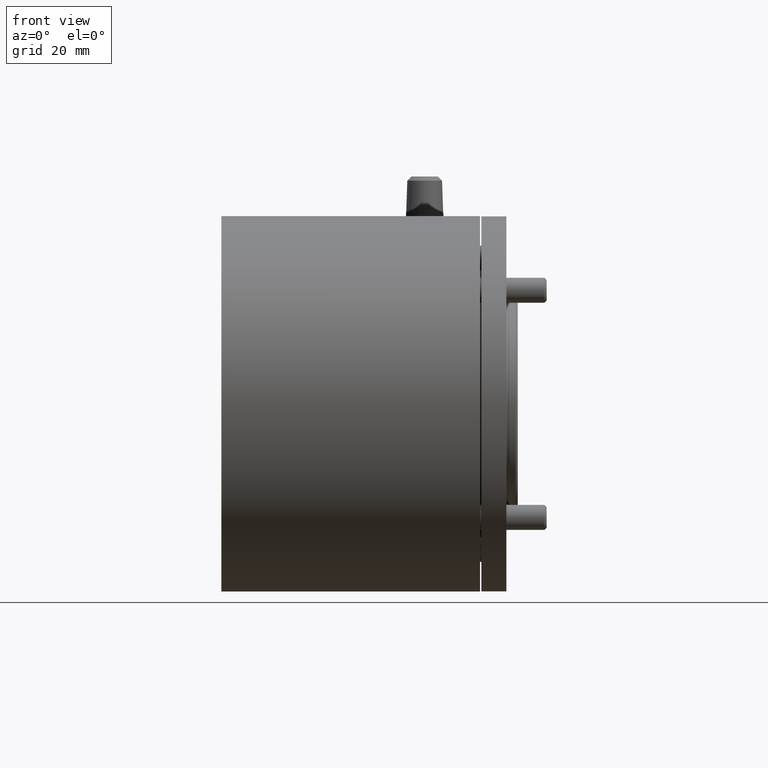
[diagram: clean part render]
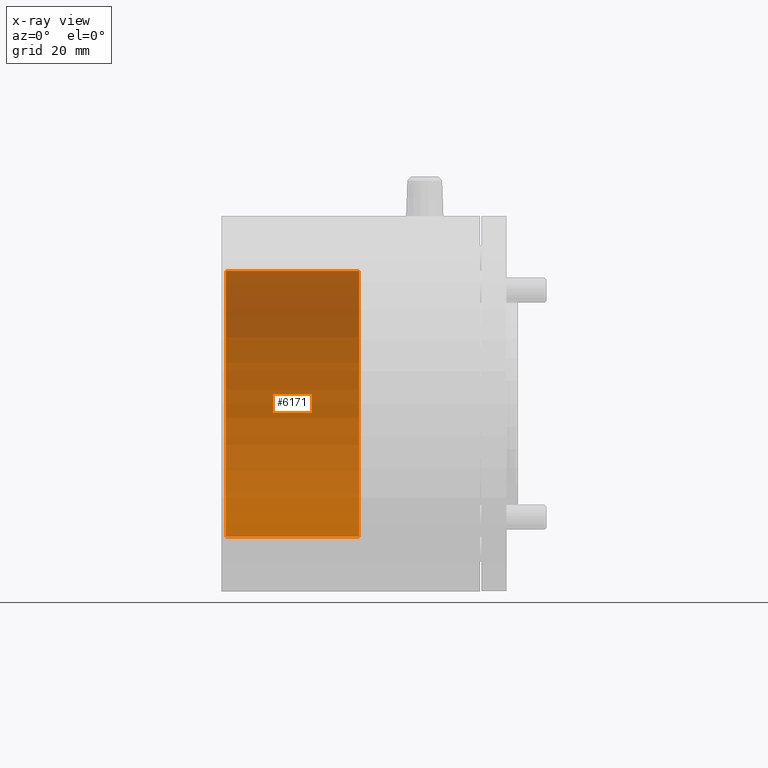
[diagram: x-ray — body ghosted, one internal face saturated and labeled with its STEP entity id]
A machine part, front view, then the same camera in x-ray: the body is ghosted and one INTERNAL B-rep face — a face not visible from any outside direction — is saturated and labeled: STEP entity #6171.
In plain terms, the highlighted cylindrical surface (partial cylindrical patch) has radius 31.85 mm, axis along (-1, -0, -0).
Its self-contained STEP definition (entity closure, byte-faithful):
#242 = VERTEX_POINT ( 'NONE', #11799 ) ;
#322 = VECTOR ( 'NONE', #5580, 1000.000000000000000 ) ;
#1030 = ORIENTED_EDGE ( 'NONE', *, *, #6987, .F. ) ;
#1964 = VERTEX_POINT ( 'NONE', #9335 ) ;
#2296 = DIRECTION ( 'NONE',  ( -1.000000000000000000, -0.000000000000000000, -0.000000000000000000 ) ) ;
#2821 = AXIS2_PLACEMENT_3D ( 'NONE', #11774, #2296, #12950 ) ;
#3744 = CIRCLE ( 'NONE', #12936, 31.85000000000000497 ) ;
#3747 = ORIENTED_EDGE ( 'NONE', *, *, #7602, .F. ) ;
#3917 = CARTESIAN_POINT ( 'NONE',  ( 32.00000000000000000, 3.900500055284320622E-15, -31.85000000000000497 ) ) ;
#4010 = CARTESIAN_POINT ( 'NONE',  ( 0.000000000000000000, 0.000000000000000000, 0.000000000000000000 ) ) ;
#4100 = AXIS2_PLACEMENT_3D ( 'NONE', #4010, #5099, #5287 ) ;
#4133 = DIRECTION ( 'NONE',  ( 0.000000000000000000, 0.000000000000000000, 1.000000000000000000 ) ) ;
#5099 = DIRECTION ( 'NONE',  ( -1.000000000000000000, -0.000000000000000000, -0.000000000000000000 ) ) ;
#5287 = DIRECTION ( 'NONE',  ( 0.000000000000000000, 0.000000000000000000, 1.000000000000000000 ) ) ;
#5580 = DIRECTION ( 'NONE',  ( -1.000000000000000000, -0.000000000000000000, -0.000000000000000000 ) ) ;
#5890 = ORIENTED_EDGE ( 'NONE', *, *, #9855, .T. ) ;
#6171 = ADVANCED_FACE ( 'NONE', ( #12918 ), #8751, .T. ) ;
#6245 = ORIENTED_EDGE ( 'NONE', *, *, #8198, .T. ) ;
#6987 = EDGE_CURVE ( 'NONE', #1964, #8608, #10146, .T. ) ;
#7321 = DIRECTION ( 'NONE',  ( -1.000000000000000000, -0.000000000000000000, -0.000000000000000000 ) ) ;
#7602 = EDGE_CURVE ( 'NONE', #8608, #242, #12603, .T. ) ;
#8198 = EDGE_CURVE ( 'NONE', #13435, #242, #13106, .T. ) ;
#8608 = VERTEX_POINT ( 'NONE', #9314 ) ;
#8751 = CYLINDRICAL_SURFACE ( 'NONE', #2821, 31.85000000000000497 ) ;
#9250 = CARTESIAN_POINT ( 'NONE',  ( -92.84011180044485911, 0.000000000000000000, 31.85000000000000497 ) ) ;
#9314 = CARTESIAN_POINT ( 'NONE',  ( 0.000000000000000000, 0.000000000000000000, 31.85000000000000497 ) ) ;
#9329 = CARTESIAN_POINT ( 'NONE',  ( 32.00000000000000000, 0.000000000000000000, 0.000000000000000000 ) ) ;
#9335 = CARTESIAN_POINT ( 'NONE',  ( 32.00000000000000000, 0.000000000000000000, 31.85000000000000497 ) ) ;
#9855 = EDGE_CURVE ( 'NONE', #1964, #13435, #3744, .T. ) ;
#9953 = VECTOR ( 'NONE', #11248, 1000.000000000000000 ) ;
#10146 = LINE ( 'NONE', #9250, #9953 ) ;
#11248 = DIRECTION ( 'NONE',  ( -1.000000000000000000, -0.000000000000000000, -0.000000000000000000 ) ) ;
#11774 = CARTESIAN_POINT ( 'NONE',  ( -92.84011180044485911, 0.000000000000000000, 0.000000000000000000 ) ) ;
#11799 = CARTESIAN_POINT ( 'NONE',  ( 0.000000000000000000, 3.900500055284320622E-15, -31.85000000000000497 ) ) ;
#11868 = CARTESIAN_POINT ( 'NONE',  ( -92.84011180044485911, 3.900500055284320622E-15, -31.85000000000000497 ) ) ;
#12603 = CIRCLE ( 'NONE', #4100, 31.85000000000000497 ) ;
#12918 = FACE_OUTER_BOUND ( 'NONE', #13290, .T. ) ;
#12936 = AXIS2_PLACEMENT_3D ( 'NONE', #9329, #7321, #4133 ) ;
#12950 = DIRECTION ( 'NONE',  ( 0.000000000000000000, 0.000000000000000000, 1.000000000000000000 ) ) ;
#13106 = LINE ( 'NONE', #11868, #322 ) ;
#13290 = EDGE_LOOP ( 'NONE', ( #5890, #6245, #3747, #1030 ) ) ;
#13435 = VERTEX_POINT ( 'NONE', #3917 ) ;